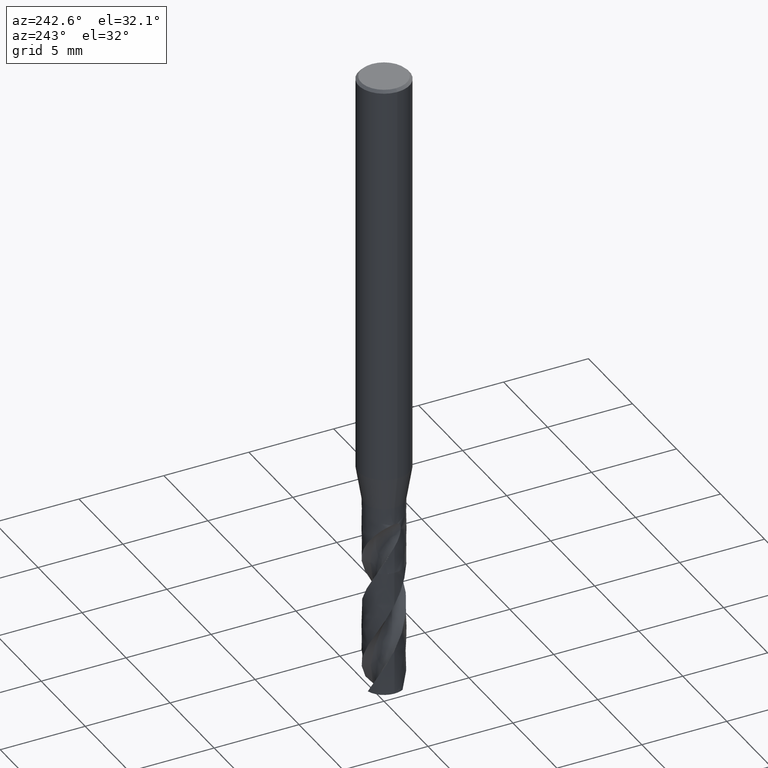
[diagram: clean part render]
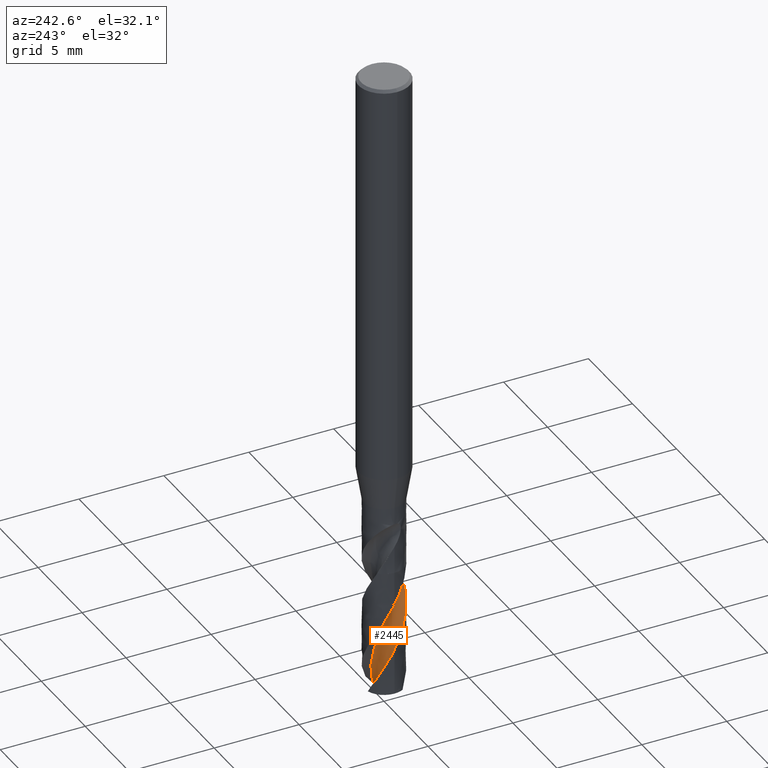
[diagram: same view with one face highlighted and labeled with its STEP entity id]
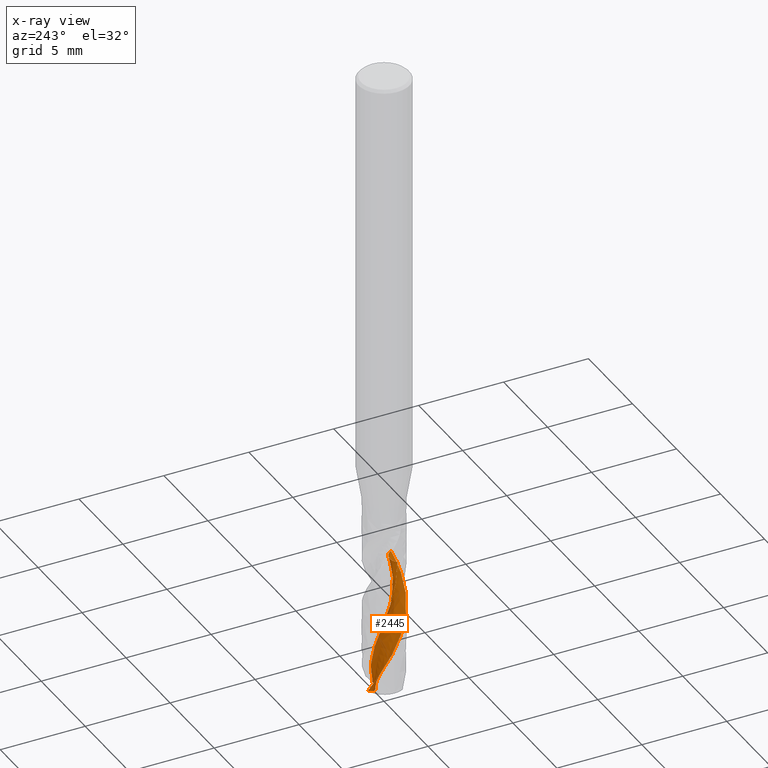
[diagram: x-ray of the same camera — body ghosted, the highlighted face saturated]
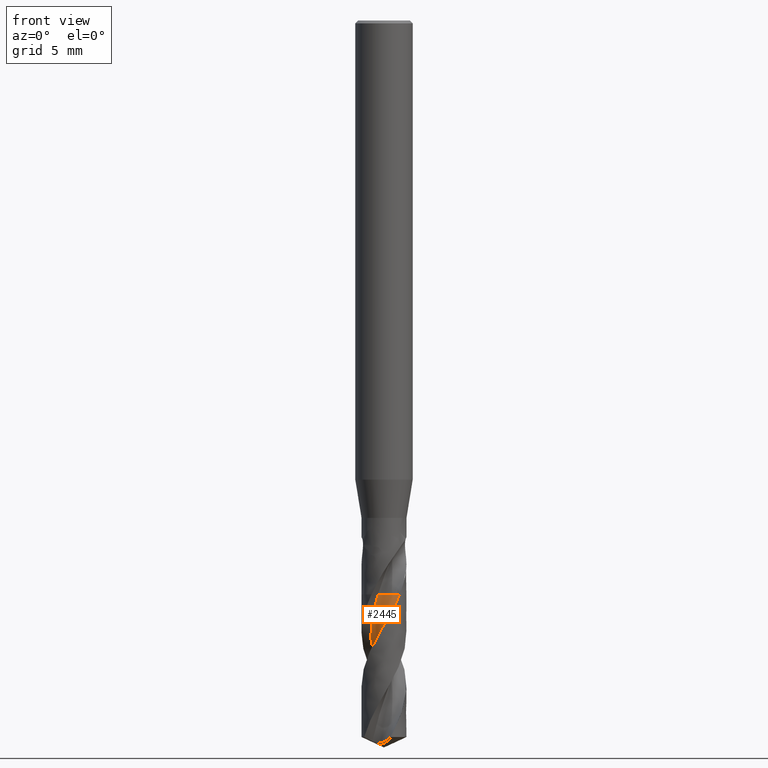
[diagram: same view with one face highlighted and labeled with its STEP entity id]
A machine part, auxiliary view. The second image highlights one B-rep face of the part: STEP entity #2445.
The next image is the same camera in x-ray: the body ghosted, the highlighted face saturated — about 0% of this face is hidden behind the body in this view.
A second angle (front view) of the same face is appended — the face is thin or edge-on in the first view.
In plain terms, the highlighted face is a freeform B-spline surface patch.
Its self-contained STEP definition (entity closure, byte-faithful):
#1412 = VERTEX_POINT('', #1413);
#1413 = CARTESIAN_POINT('', (-0.310056572990397, -0.636736640835384, -30.));
#1419 = EDGE_CURVE('', #1412, #1420, #1422, .T.);
#1420 = VERTEX_POINT('', #1421);
#1421 = CARTESIAN_POINT('', (0.825852395738025, -0.83581865285106, -30.));
#1422 = B_SPLINE_CURVE_WITH_KNOTS('', 3, (#1423, #1424, #1425, #1426, #1427, #1428, #1429, #1430, #1431, #1432, #1433, #1434, #1435, #1436, #1437, #1438, #1439, #1440, #1441, #1442, #1443, #1444, #1445, #1446, #1447, #1448, #1449, #1450, #1451, #1452, #1453, #1454, #1455, #1456, #1457, #1458, #1459, #1460, #1461, #1462, #1463, #1464, #1465, #1466, #1467, #1468, #1469, #1470, #1471, #1472, #1473, #1474), .UNSPECIFIED., .F., .U., (4, 3, 3, 3, 3, 3, 3, 3, 3, 3, 3, 3, 3, 3, 3, 3, 3, 4), (0., 0.0882468825165132, 0.176314471128919, 0.264208472789839, 0.351933032638059, 0.439490879164629, 0.526883418855281, 0.614110787306943, 0.67226466872502, 0.689551866928474, 0.777780971141354, 0.86583141177824, 0.953708735528269, 1.04141694391449, 1.12895863312161, 1.21633508414374, 1.30354630990752, 1.3452432899909), .UNSPECIFIED.);
#1423 = CARTESIAN_POINT('', (-0.310056572990397, -0.636736640835385, -30.));
#1424 = CARTESIAN_POINT('', (-0.28903558581991, -0.616160022067454, -30.));
#1425 = CARTESIAN_POINT('', (-0.266690012954979, -0.596855577440722, -30.));
#1426 = CARTESIAN_POINT('', (-0.243278165660954, -0.579046463262194, -30.));
#1427 = CARTESIAN_POINT('', (-0.219913884936807, -0.561273532408434, -30.));
#1428 = CARTESIAN_POINT('', (-0.195397921353725, -0.544921564279987, -30.));
#1429 = CARTESIAN_POINT('', (-0.170012528439635, -0.530178819912447, -30.));
#1430 = CARTESIAN_POINT('', (-0.144677171787895, -0.515465134453997, -30.));
#1431 = CARTESIAN_POINT('', (-0.118378882748517, -0.502298012300725, -30.));
#1432 = CARTESIAN_POINT('', (-0.0914192458724669, -0.490828451892731, -30.));
#1433 = CARTESIAN_POINT('', (-0.0645115817096365, -0.47938100247149, -30.));
#1434 = CARTESIAN_POINT('', (-0.0368425681992175, -0.469580919080158, -30.));
#1435 = CARTESIAN_POINT('', (-0.00872829041286684, -0.461540155838808, -30.));
#1436 = CARTESIAN_POINT('', (0.019332558497424, -0.453514673407654, -30.));
#1437 = CARTESIAN_POINT('', (0.0479435221148785, -0.447211332305335, -30.));
#1438 = CARTESIAN_POINT('', (0.0767789923027634, -0.442701867939966, -30.));
#1439 = CARTESIAN_POINT('', (0.105560021906188, -0.438200917320828, -30.));
#1440 = CARTESIAN_POINT('', (0.134673578372927, -0.435470024841199, -30.));
#1441 = CARTESIAN_POINT('', (0.163789580144319, -0.434540152614798, -30.));
#1442 = CARTESIAN_POINT('', (0.192850552892593, -0.433612037839871, -30.));
#1443 = CARTESIAN_POINT('', (0.22202347720164, -0.434474618714375, -30.));
#1444 = CARTESIAN_POINT('', (0.250978843957687, -0.437118152359728, -30.));
#1445 = CARTESIAN_POINT('', (0.270283186099813, -0.438880577901911, -30.));
#1446 = CARTESIAN_POINT('', (0.289531385557668, -0.441436628610267, -30.));
#1447 = CARTESIAN_POINT('', (0.308626656690257, -0.444773451905688, -30.));
#1448 = CARTESIAN_POINT('', (0.314303040256895, -0.44576537753939, -30.));
#1449 = CARTESIAN_POINT('', (0.319967763414958, -0.446826512823726, -30.));
#1450 = CARTESIAN_POINT('', (0.325618306230098, -0.447956385715989, -30.));
#1451 = CARTESIAN_POINT('', (0.35445712238925, -0.453722946149062, -30.));
#1452 = CARTESIAN_POINT('', (0.382991687563418, -0.461299936542827, -30.));
#1453 = CARTESIAN_POINT('', (0.410892279230117, -0.470599803280464, -30.));
#1454 = CARTESIAN_POINT('', (0.438736372312545, -0.479880837825907, -30.));
#1455 = CARTESIAN_POINT('', (0.466055987370024, -0.490913390327677, -30.));
#1456 = CARTESIAN_POINT('', (0.492536714416902, -0.503570491768583, -30.));
#1457 = CARTESIAN_POINT('', (0.518965377430995, -0.516202707950742, -30.));
#1458 = CARTESIAN_POINT('', (0.544659545460521, -0.530501382855048, -30.));
#1459 = CARTESIAN_POINT('', (0.569324673408629, -0.546302603620822, -30.));
#1460 = CARTESIAN_POINT('', (0.593942334593886, -0.562073415754603, -30.));
#1461 = CARTESIAN_POINT('', (0.617628722899381, -0.579401062219551, -30.));
#1462 = CARTESIAN_POINT('', (0.640113350513525, -0.598087669151907, -30.));
#1463 = CARTESIAN_POINT('', (0.662555289743066, -0.616738798464737, -30.));
#1464 = CARTESIAN_POINT('', (0.68388522555024, -0.636814506040216, -30.));
#1465 = CARTESIAN_POINT('', (0.70386050113291, -0.65808640361478, -30.));
#1466 = CARTESIAN_POINT('', (0.723798072642104, -0.679318149693772, -30.));
#1467 = CARTESIAN_POINT('', (0.742461502803415, -0.70182184140346, -30.));
#1468 = CARTESIAN_POINT('', (0.759639268420818, -0.725342431694534, -30.));
#1469 = CARTESIAN_POINT('', (0.776784551593251, -0.748818545521275, -30.));
#1470 = CARTESIAN_POINT('', (0.792514392460093, -0.773396137787874, -30.));
#1471 = CARTESIAN_POINT('', (0.806651187534198, -0.798797706253261, -30.));
#1472 = CARTESIAN_POINT('', (0.813410198859693, -0.810942572755385, -30.));
#1473 = CARTESIAN_POINT('', (0.819818329384635, -0.823297787877127, -30.));
#1474 = CARTESIAN_POINT('', (0.825852395738025, -0.83581865285106, -30.));
#2331 = EDGE_CURVE('', #1420, #2332, #2334, .T.);
#2332 = VERTEX_POINT('', #2333);
#2333 = CARTESIAN_POINT('', (0.266972097908336, -1.14426871797599, -31.1212727796582));
#2334 = B_SPLINE_CURVE_WITH_KNOTS('', 3, (#2335, #2336, #2337, #2338, #2339, #2340, #2341, #2342, #2343, #2344, #2345, #2346, #2347, #2348, #2349, #2350, #2351, #2352, #2353, #2354, #2355, #2356), .UNSPECIFIED., .F., .U., (4, 3, 3, 3, 3, 3, 3, 4), (0.81353262380367, 0.875933690164871, 1.07293763319324, 1.26990593108701, 1.46682811431797, 1.66370732220614, 1.95877341215135, 2.10770555532022), .UNSPECIFIED.);
#2335 = CARTESIAN_POINT('', (0.825852395738025, -0.83581865285106, -30.));
#2336 = CARTESIAN_POINT('', (0.818445904757134, -0.843136829227857, -30.0180067479815));
#2337 = CARTESIAN_POINT('', (0.810942125325879, -0.850356474669242, -30.0360158168574));
#2338 = CARTESIAN_POINT('', (0.803348929654479, -0.857470406033351, -30.0540266510148));
#2339 = CARTESIAN_POINT('', (0.779376751378024, -0.87992951788651, -30.1108879444692));
#2340 = CARTESIAN_POINT('', (0.754494805929052, -0.901353562566952, -30.1677910714515));
#2341 = CARTESIAN_POINT('', (0.728767968576534, -0.921695311899127, -30.2246824311101));
#2342 = CARTESIAN_POINT('', (0.703045786138867, -0.942033380673534, -30.2815634970652));
#2343 = CARTESIAN_POINT('', (0.676456550652546, -0.961305208071376, -30.3384502827728));
#2344 = CARTESIAN_POINT('', (0.649111758976148, -0.97942785561719, -30.3953234345152));
#2345 = CARTESIAN_POINT('', (0.621773369324144, -0.997546260247825, -30.452183270987));
#2346 = CARTESIAN_POINT('', (0.59367261008476, -1.01452090914273, -30.5090575529595));
#2347 = CARTESIAN_POINT('', (0.564925686131962, -1.03028344116963, -30.5659246092053));
#2348 = CARTESIAN_POINT('', (0.536185035768512, -1.04604253325793, -30.6227792550605));
#2349 = CARTESIAN_POINT('', (0.506783585366919, -1.06059854218703, -30.6796498401915));
#2350 = CARTESIAN_POINT('', (0.476833319899476, -1.07389710169719, -30.7365089171754));
#2351 = CARTESIAN_POINT('', (0.431946367035874, -1.09382787040892, -30.8217245461059));
#2352 = CARTESIAN_POINT('', (0.385791985282001, -1.11094548255398, -30.9069859250054));
#2353 = CARTESIAN_POINT('', (0.338781901869354, -1.12510080569039, -30.9922118387715));
#2354 = CARTESIAN_POINT('', (0.315053955108365, -1.13224558675401, -31.0352289065514));
#2355 = CARTESIAN_POINT('', (0.291099473520367, -1.13863950170627, -31.0782528639844));
#2356 = CARTESIAN_POINT('', (0.266972097908325, -1.14426871797599, -31.1212727796582));
#2445 = ADVANCED_FACE('', (#2446), #2631, .T.);
#2446 = FACE_OUTER_BOUND('', #2447, .T.);
#2447 = EDGE_LOOP('', (#2448, #2449, #2494, #2587, #2596, #2630));
#2448 = ORIENTED_EDGE('', *, *, #1419, .F.);
#2449 = ORIENTED_EDGE('', *, *, #2450, .F.);
#2450 = EDGE_CURVE('', #2451, #1412, #2453, .T.);
#2451 = VERTEX_POINT('', #2452);
#2452 = CARTESIAN_POINT('', (0.607430328762443, 0.353179345189753, -37.672352165348));
#2453 = (
   BOUNDED_CURVE ()
   B_SPLINE_CURVE (3, (#2454, #2455, #2456, #2457, #2458, #2459, #2460, #2461, #2462, #2463, #2464, #2465, #2466, #2467, #2468, #2469, #2470, #2471, #2472, #2473, #2474, #2475, #2476, #2477, #2478, #2479, #2480, #2481, #2482, #2483, #2484, #2485, #2486, #2487, #2488, #2489, #2490, #2491, #2492, #2493), .UNSPECIFIED., .F., .U.)
   B_SPLINE_CURVE_WITH_KNOTS ((4, 1, 1, 1, 1, 1, 1, 1, 1, 1, 1, 1, 1, 1, 1, 1, 1, 1, 1, 1, 1, 1, 1, 1, 1, 1, 1, 1, 1, 1, 1, 1, 1, 1, 1, 1, 1, 4), (0.377647834651986, 0.433333333333333, 0.65, 0.866666666666667, 1.08333333333333, 1.3, 1.51666666666667, 1.73333333333333, 1.95, 2.16666666666667, 2.38333333333333, 2.6, 2.81666666666667, 3.03333333333333, 3.25, 3.46666666666667, 3.68333333333333, 3.9, 4.11666666666667, 4.33333333333333, 4.55, 4.76666666666667, 4.98333333333333, 5.2, 5.41666666666667, 5.63333333333333, 5.85, 6.06666666666667, 6.28333333333333, 6.5, 6.71666666666667, 6.93333333333333, 7.15, 7.36666666666667, 7.58333333333333, 7.8, 8.01666666666667, 8.05), .UNSPECIFIED.)
   CURVE ()
   GEOMETRIC_REPRESENTATION_ITEM ()
   RATIONAL_B_SPLINE_CURVE ((1., 1., 1., 1., 1., 1., 1., 1., 1., 1., 1., 1., 1., 1., 1., 1., 1., 1., 1., 1., 1., 1., 1., 1., 1., 1., 1., 1., 1., 1., 1., 1., 1., 1., 1., 1., 1., 1., 1., 1.))
   REPRESENTATION_ITEM ('')
);
#2454 = CARTESIAN_POINT('', (0.607430328762443, 0.353179345189754, -37.672352165348));
#2455 = CARTESIAN_POINT('', (0.60411072402873, 0.358588863284804, -37.6537903324542));
#2456 = CARTESIAN_POINT('', (0.587526648131126, 0.384820677305307, -37.5630062773382));
#2457 = CARTESIAN_POINT('', (0.554741964565159, 0.429858032632321, -37.4));
#2458 = CARTESIAN_POINT('', (0.505303468884842, 0.484745935378136, -37.1833333333333));
#2459 = CARTESIAN_POINT('', (0.450555430302855, 0.534097242375124, -36.9666666666667));
#2460 = CARTESIAN_POINT('', (0.391103108120681, 0.577411427832879, -36.75));
#2461 = CARTESIAN_POINT('', (0.327597236224047, 0.614252295188245, -36.5333333333333));
#2462 = CARTESIAN_POINT('', (0.260727748676196, 0.64425229390715, -36.3166666666667));
#2463 = CARTESIAN_POINT('', (0.191216602371652, 0.667115804675747, -36.1));
#2464 = CARTESIAN_POINT('', (0.119810478915378, 0.682621811255435, -35.8833333333333));
#2465 = CARTESIAN_POINT('', (0.047273242750296, 0.690625819783552, -35.6666666666667));
#2466 = CARTESIAN_POINT('', (-0.0256217231825259, 0.691061043781038, -35.45));
#2467 = CARTESIAN_POINT('', (-0.0980992474036231, 0.683938839102296, -35.2333333333333));
#2468 = CARTESIAN_POINT('', (-0.169390091062562, 0.669348390362703, -35.0166666666667));
#2469 = CARTESIAN_POINT('', (-0.238738591014621, 0.647455653882285, -34.8));
#2470 = CARTESIAN_POINT('', (-0.30541015524102, 0.618501569284355, -34.5833333333333));
#2471 = CARTESIAN_POINT('', (-0.368698542902669, 0.582799557870803, -34.3666666666667));
#2472 = CARTESIAN_POINT('', (-0.427932863267565, 0.540732331972326, -34.15));
#2473 = CARTESIAN_POINT('', (-0.482484230318985, 0.492748045267429, -33.9333333333333));
#2474 = CARTESIAN_POINT('', (-0.531772012871576, 0.439355819630104, -33.7166666666667));
#2475 = CARTESIAN_POINT('', (-0.575269623511679, 0.381120689343455, -33.5));
#2476 = CARTESIAN_POINT('', (-0.612509793603903, 0.318658008472619, -33.2833333333333));
#2477 = CARTESIAN_POINT('', (-0.643089285939288, 0.252627371805398, -33.0666666666667));
#2478 = CARTESIAN_POINT('', (-0.666673001331353, 0.183726103956553, -32.85));
#2479 = CARTESIAN_POINT('', (-0.68299744049406, 0.112682375168384, -32.6333333333333));
#2480 = CARTESIAN_POINT('', (-0.691873488091487, 0.0402480052289624, -32.4166666666667));
#2481 = CARTESIAN_POINT('', (-0.693188490913276, -0.032808978384908, -32.2));
#2482 = CARTESIAN_POINT('', (-0.686907610343959, -0.105711966286407, -31.9833333333333));
#2483 = CARTESIAN_POINT('', (-0.673074426893331, -0.177683488260426, -31.7666666666667));
#2484 = CARTESIAN_POINT('', (-0.651810812727918, -0.247953032468109, -31.55));
#2485 = CARTESIAN_POINT('', (-0.623315975658091, -0.31576461841908, -31.3333333333333));
#2486 = CARTESIAN_POINT('', (-0.58786502838043, -0.380385071711235, -31.1166666666667));
#2487 = CARTESIAN_POINT('', (-0.545805786964525, -0.441109124747139, -30.9));
#2488 = CARTESIAN_POINT('', (-0.497558690790905, -0.497275472323132, -30.6833333333333));
#2489 = CARTESIAN_POINT('', (-0.443601672364508, -0.548240721375793, -30.4666666666667));
#2490 = CARTESIAN_POINT('', (-0.384507911284166, -0.593508936766856, -30.25));
#2491 = CARTESIAN_POINT('', (-0.33875675418427, -0.621343593016662, -30.0944444444444));
#2492 = CARTESIAN_POINT('', (-0.313446101236809, -0.634948817954132, -30.0111111111111));
#2493 = CARTESIAN_POINT('', (-0.310056572990397, -0.636736640835384, -30.));
#2494 = ORIENTED_EDGE('', *, *, #2495, .T.);
#2495 = EDGE_CURVE('', #2451, #2496, #2498, .T.);
#2496 = VERTEX_POINT('', #2497);
#2497 = CARTESIAN_POINT('', (-0.338161658511056, 1.12528738227755, -37.4520885016679));
#2498 = B_SPLINE_CURVE_WITH_KNOTS('', 3, (#2499, #2500, #2501, #2502, #2503, #2504, #2505, #2506, #2507, #2508, #2509, #2510, #2511, #2512, #2513, #2514, #2515, #2516, #2517, #2518, #2519, #2520, #2521, #2522, #2523, #2524, #2525, #2526, #2527, #2528, #2529, #2530, #2531, #2532, #2533, #2534, #2535, #2536, #2537, #2538, #2539, #2540, #2541, #2542, #2543, #2544, #2545, #2546, #2547, #2548, #2549, #2550, #2551, #2552, #2553, #2554, #2555, #2556, #2557, #2558, #2559, #2560, #2561, #2562, #2563, #2564, #2565, #2566, #2567, #2568, #2569, #2570, #2571, #2572, #2573, #2574, #2575, #2576, #2577, #2578, #2579, #2580, #2581, #2582, #2583, #2584, #2585, #2586), .UNSPECIFIED., .F., .U., (4, 3, 3, 3, 3, 3, 3, 3, 3, 3, 3, 3, 3, 3, 3, 3, 3, 3, 3, 3, 3, 3, 3, 3, 3, 3, 3, 3, 3, 4), (0., 0.0584546465119153, 0.116835007347035, 0.175096926865649, 0.213891152012831, 0.252631456754015, 0.29132079033709, 0.329972627099937, 0.368611581580512, 0.407268859800267, 0.445972794582668, 0.484739251594646, 0.523567927680223, 0.562445978273234, 0.601355092813855, 0.640277471821008, 0.679198887452651, 0.696501007882805, 0.713867130443627, 0.772993960590003, 0.83189534949514, 0.890619793826721, 0.949204523059645, 1.00767693951231, 1.06605681218293, 1.12435825064104, 1.21158228466745, 1.29860676316296, 1.38544995620957, 1.43816429327208), .UNSPECIFIED.);
#2499 = CARTESIAN_POINT('', (0.607430328762443, 0.353179345189754, -37.672352165348));
#2500 = CARTESIAN_POINT('', (0.59066809518801, 0.347433528051295, -37.6804560992206));
#2501 = CARTESIAN_POINT('', (0.573525409946063, 0.342603041465193, -37.6884887504397));
#2502 = CARTESIAN_POINT('', (0.556115339284522, 0.33876753889185, -37.6963525276983));
#2503 = CARTESIAN_POINT('', (0.538727393791112, 0.334936910574388, -37.7042063114654));
#2504 = CARTESIAN_POINT('', (0.521022888558366, 0.332088359040214, -37.7119145464595));
#2505 = CARTESIAN_POINT('', (0.503129567620144, 0.330289005566165, -37.7193501146373));
#2506 = CARTESIAN_POINT('', (0.485272548418641, 0.328493302597034, -37.726770597631));
#2507 = CARTESIAN_POINT('', (0.467170419255718, 0.327737771160543, -37.7339433384493));
#2508 = CARTESIAN_POINT('', (0.448968122143674, 0.328068274460339, -37.7407056161123));
#2509 = CARTESIAN_POINT('', (0.436847958266565, 0.328288343066559, -37.7452083397494));
#2510 = CARTESIAN_POINT('', (0.424660039769848, 0.328989557113384, -37.7495371866311));
#2511 = CARTESIAN_POINT('', (0.412452701863025, 0.330177034046347, -37.7536350058699));
#2512 = CARTESIAN_POINT('', (0.400262331033482, 0.331362860495557, -37.7577271295169));
#2513 = CARTESIAN_POINT('', (0.388031503723794, 0.333035896669825, -37.7615956912216));
#2514 = CARTESIAN_POINT('', (0.375813698646336, 0.335191218577815, -37.7651785152242));
#2515 = CARTESIAN_POINT('', (0.363611968705058, 0.337343704698774, -37.7687566252553));
#2516 = CARTESIAN_POINT('', (0.351400408352993, 0.339981490000975, -37.7720559872245));
#2517 = CARTESIAN_POINT('', (0.339237847946343, 0.343086256840967, -37.7750141671852));
#2518 = CARTESIAN_POINT('', (0.327087075216007, 0.346188014611708, -37.7779694801453));
#2519 = CARTESIAN_POINT('', (0.314961002907329, 0.349762210503344, -37.7805895444841));
#2520 = CARTESIAN_POINT('', (0.302922516299086, 0.353774444689435, -37.7828195379648));
#2521 = CARTESIAN_POINT('', (0.290888042001657, 0.357785341636789, -37.7850487882103));
#2522 = CARTESIAN_POINT('', (0.278916259391664, 0.362242256775862, -37.7868922286791));
#2523 = CARTESIAN_POINT('', (0.267070404310234, 0.367094545461683, -37.7883122408248));
#2524 = CARTESIAN_POINT('', (0.255218931572689, 0.371949135246834, -37.7897329263823));
#2525 = CARTESIAN_POINT('', (0.243469183538682, 0.377209171005792, -37.7907323913492));
#2526 = CARTESIAN_POINT('', (0.231878907143677, 0.382811709089269, -37.7912979491226));
#2527 = CARTESIAN_POINT('', (0.220274642116218, 0.388421009034447, -37.7918641894836));
#2528 = CARTESIAN_POINT('', (0.208807735213166, 0.394384038026421, -37.7919967500237));
#2529 = CARTESIAN_POINT('', (0.19752457072222, 0.400633172185958, -37.7917097619137));
#2530 = CARTESIAN_POINT('', (0.186223179438452, 0.406892401179594, -37.7914223102039));
#2531 = CARTESIAN_POINT('', (0.175086581912548, 0.413448956098501, -37.7907140478318));
#2532 = CARTESIAN_POINT('', (0.1641466140287, 0.420238955405378, -37.7896208721176));
#2533 = CARTESIAN_POINT('', (0.153189087803972, 0.427039852470245, -37.7885259418872));
#2534 = CARTESIAN_POINT('', (0.1424128762478, 0.434084417754269, -37.7870440033739));
#2535 = CARTESIAN_POINT('', (0.131835881186902, 0.441318482508628, -37.7852235812598));
#2536 = CARTESIAN_POINT('', (0.121245436429185, 0.44856174609282, -37.7834008442987));
#2537 = CARTESIAN_POINT('', (0.110842385544212, 0.456003170290437, -37.7812372644923));
#2538 = CARTESIAN_POINT('', (0.100633981053455, 0.463600510320417, -37.7787849880463));
#2539 = CARTESIAN_POINT('', (0.0904174199463683, 0.471203920700353, -37.7763307522071));
#2540 = CARTESIAN_POINT('', (0.0803866343240794, 0.478970224600526, -37.7735855582536));
#2541 = CARTESIAN_POINT('', (0.0705422174603349, 0.486868362911886, -37.7705989026587));
#2542 = CARTESIAN_POINT('', (0.0606944445464835, 0.494769193769518, -37.7676112288861));
#2543 = CARTESIAN_POINT('', (0.051026443831091, 0.502807332651949, -37.764380092777));
#2544 = CARTESIAN_POINT('', (0.0415354889338769, 0.510960764515032, -37.7609491631409));
#2545 = CARTESIAN_POINT('', (0.0320447689491671, 0.519113994570909, -37.7575183184243));
#2546 = CARTESIAN_POINT('', (0.0227261449943112, 0.527386792013114, -37.7538859701808));
#2547 = CARTESIAN_POINT('', (0.0135758314297387, 0.535763823581565, -37.7500890338615));
#2548 = CARTESIAN_POINT('', (0.00950815237185793, 0.539487747973635, -37.7484011443438));
#2549 = CARTESIAN_POINT('', (0.00547318366495287, 0.543232836328786, -37.746680422218));
#2550 = CARTESIAN_POINT('', (0.00147059961810277, 0.546998055472178, -37.7449296959201));
#2551 = CARTESIAN_POINT('', (-0.00254679035431083, 0.55077720250658, -37.743172493525));
#2552 = CARTESIAN_POINT('', (-0.00653184296471015, 0.554576900653698, -37.7413849385067));
#2553 = CARTESIAN_POINT('', (-0.0104848626241149, 0.558396259300005, -37.7395696506897));
#2554 = CARTESIAN_POINT('', (-0.0239437980397958, 0.571400116042195, -37.7333890992139));
#2555 = CARTESIAN_POINT('', (-0.0370379228091957, 0.584636925851609, -37.7268861602908));
#2556 = CARTESIAN_POINT('', (-0.0497758685947914, 0.598081448615705, -37.7201458343307));
#2557 = CARTESIAN_POINT('', (-0.0624652466100257, 0.611474709543299, -37.7134312081662));
#2558 = CARTESIAN_POINT('', (-0.0748086970566829, 0.625082404118337, -37.7064765635763));
#2559 = CARTESIAN_POINT('', (-0.0868084247996351, 0.638888781839937, -37.6993437923392));
#2560 = CARTESIAN_POINT('', (-0.0987721043823023, 0.65265368407745, -37.6922324485283));
#2561 = CARTESIAN_POINT('', (-0.110400024515861, 0.666623115443545, -37.6849401563391));
#2562 = CARTESIAN_POINT('', (-0.121688131164806, 0.680785950075015, -37.6775127653406));
#2563 = CARTESIAN_POINT('', (-0.132949381553943, 0.694915088996625, -37.6701030453252));
#2564 = CARTESIAN_POINT('', (-0.143877448674257, 0.709243180849624, -37.6625552789119));
#2565 = CARTESIAN_POINT('', (-0.154462691458895, 0.723761045975879, -37.6549043636029));
#2566 = CARTESIAN_POINT('', (-0.165027641275341, 0.738251078903929, -37.647268115863));
#2567 = CARTESIAN_POINT('', (-0.175255606877737, 0.752936495057854, -37.6395256318448));
#2568 = CARTESIAN_POINT('', (-0.185132004083893, 0.767808498997122, -37.6317043931015));
#2569 = CARTESIAN_POINT('', (-0.194992770002582, 0.782656965145844, -37.6238955329643));
#2570 = CARTESIAN_POINT('', (-0.204507333862353, 0.797697933175622, -37.6160046463641));
#2571 = CARTESIAN_POINT('', (-0.213656643352028, 0.812921971689791, -37.6080542542167));
#2572 = CARTESIAN_POINT('', (-0.222793660610632, 0.828125556485628, -37.6001145435375));
#2573 = CARTESIAN_POINT('', (-0.231570503003455, 0.843518623057805, -37.5921118138023));
#2574 = CARTESIAN_POINT('', (-0.239963957161495, 0.859090317203958, -37.5840653643112));
#2575 = CARTESIAN_POINT('', (-0.252521296233085, 0.882386929019609, -37.5720271744694));
#2576 = CARTESIAN_POINT('', (-0.264232541686514, 0.906105407659752, -37.5598802619718));
#2577 = CARTESIAN_POINT('', (-0.27500289462015, 0.930199779924212, -37.5476819988093));
#2578 = CARTESIAN_POINT('', (-0.285748606598782, 0.954239027872276, -37.5355116434466));
#2579 = CARTESIAN_POINT('', (-0.295570722022912, 0.978682223864046, -37.5232749373234));
#2580 = CARTESIAN_POINT('', (-0.30435517082137, 1.00346683736818, -37.5110262757537));
#2581 = CARTESIAN_POINT('', (-0.313121320254279, 1.02819982068891, -37.4988031300406));
#2582 = CARTESIAN_POINT('', (-0.320866382837751, 1.05330851227163, -37.4865503946973));
#2583 = CARTESIAN_POINT('', (-0.327457730827811, 1.07870660401954, -37.4743249213655));
#2584 = CARTESIAN_POINT('', (-0.331458718440713, 1.09412339746269, -37.4669039860066));
#2585 = CARTESIAN_POINT('', (-0.335037645386714, 1.10965870107813, -37.4594871886808));
#2586 = CARTESIAN_POINT('', (-0.338161658511056, 1.12528738227755, -37.4520885016679));
#2587 = ORIENTED_EDGE('', *, *, #2588, .F.);
#2588 = EDGE_CURVE('', #2589, #2496, #2591, .T.);
#2589 = VERTEX_POINT('', #2590);
#2590 = CARTESIAN_POINT('', (-0.484981410679118, 1.07024204332277, -37.1754388657541));
#2591 = B_SPLINE_CURVE_WITH_KNOTS('', 3, (#2592, #2593, #2594, #2595), .UNSPECIFIED., .F., .U., (4, 4), (0., 0.317995361630527), .UNSPECIFIED.);
#2592 = CARTESIAN_POINT('', (-0.484981410679114, 1.07024204332277, -37.1754388657542));
#2593 = CARTESIAN_POINT('', (-0.437337918856375, 1.09183174634185, -37.2676324373021));
#2594 = CARTESIAN_POINT('', (-0.388234499792308, 1.11023992389429, -37.3598824455408));
#2595 = CARTESIAN_POINT('', (-0.338161658511056, 1.12528738227755, -37.4520885016679));
#2596 = ORIENTED_EDGE('', *, *, #2597, .T.);
#2597 = EDGE_CURVE('', #2589, #2332, #2598, .T.);
#2598 = B_SPLINE_CURVE_WITH_KNOTS('', 3, (#2599, #2600, #2601, #2602, #2603, #2604, #2605, #2606, #2607, #2608, #2609, #2610, #2611, #2612, #2613, #2614, #2615, #2616, #2617, #2618, #2619, #2620, #2621, #2622, #2623, #2624, #2625, #2626, #2627, #2628, #2629), .UNSPECIFIED., .F., .U., (4, 1, 1, 1, 1, 1, 1, 1, 1, 1, 1, 1, 1, 1, 1, 1, 1, 1, 1, 1, 1, 1, 1, 1, 1, 1, 1, 1, 4), (0.874561134245855, 1.08333333333333, 1.3, 1.51666666666667, 1.73333333333333, 1.95, 2.16666666666667, 2.38333333333333, 2.6, 2.81666666666667, 3.03333333333333, 3.25, 3.46666666666667, 3.68333333333333, 3.9, 4.11666666666667, 4.33333333333333, 4.55, 4.76666666666667, 4.98333333333333, 5.2, 5.41666666666667, 5.63333333333333, 5.85, 6.06666666666667, 6.28333333333333, 6.5, 6.71666666666667, 6.92872722034178), .UNSPECIFIED.);
#2599 = CARTESIAN_POINT('', (-0.484981410679121, 1.07024204332277, -37.1754388657541));
#2600 = CARTESIAN_POINT('', (-0.520877913792561, 1.0530784907727, -37.105848132725));
#2601 = CARTESIAN_POINT('', (-0.592197414498744, 1.0144721633206, -36.9640351774736));
#2602 = CARTESIAN_POINT('', (-0.693146869925114, 0.94567048553227, -36.75));
#2603 = CARTESIAN_POINT('', (-0.787379480947867, 0.865945283975834, -36.5333333333333));
#2604 = CARTESIAN_POINT('', (-0.872682119439246, 0.777027075566999, -36.3166666666667));
#2605 = CARTESIAN_POINT('', (-0.948178585401377, 0.679891851110478, -36.1));
#2606 = CARTESIAN_POINT('', (-1.01309682419074, 0.575596923338466, -35.8833333333333));
#2607 = CARTESIAN_POINT('', (-1.06677622896, 0.465270070514866, -35.6666666666667));
#2608 = CARTESIAN_POINT('', (-1.10867384969145, 0.350098071025461, -35.45));
#2609 = CARTESIAN_POINT('', (-1.13836945172442, 0.231314710051105, -35.2333333333333));
#2610 = CARTESIAN_POINT('', (-1.15556938414156, 0.110188377012419, -35.0166666666667));
#2611 = CARTESIAN_POINT('', (-1.1601092268163, -0.0119906336422282, -34.8));
#2612 = CARTESIAN_POINT('', (-1.15195519601505, -0.133923001296549, -34.5833333333333));
#2613 = CARTESIAN_POINT('', (-1.13120429896963, -0.254313320221062, -34.3666666666667));
#2614 = CARTESIAN_POINT('', (-1.09808323855937, -0.371882985022397, -34.15));
#2615 = CARTESIAN_POINT('', (-1.05294607986958, -0.485382903475035, -33.9333333333333));
#2616 = CARTESIAN_POINT('', (-0.996270700913668, -0.593605921358372, -33.7166666666667));
#2617 = CARTESIAN_POINT('', (-0.928654060134402, -0.695398846463382, -33.5));
#2618 = CARTESIAN_POINT('', (-0.85080632336624, -0.789673962347026, -33.2833333333333));
#2619 = CARTESIAN_POINT('', (-0.763543902697642, -0.875419926664821, -33.0666666666667));
#2620 = CARTESIAN_POINT('', (-0.667781468977143, -0.951711954035436, -32.85));
#2621 = CARTESIAN_POINT('', (-0.564523008782129, -1.01772118912638, -32.6333333333333));
#2622 = CARTESIAN_POINT('', (-0.454852004384146, -1.0727231828135, -32.4166666666667));
#2623 = CARTESIAN_POINT('', (-0.339920825526332, -1.11610538963657, -32.2));
#2624 = CARTESIAN_POINT('', (-0.220939419737539, -1.14737362018366, -31.9833333333333));
#2625 = CARTESIAN_POINT('', (-0.0991634289286716, -1.16615736310445, -31.7666666666667));
#2626 = CARTESIAN_POINT('', (0.0241182631823249, -1.17221400358539, -31.55));
#2627 = CARTESIAN_POINT('', (0.146721058016876, -1.16547965315282, -31.3348687043305));
#2628 = CARTESIAN_POINT('', (0.227433521145325, -1.15264152036565, -31.1919596308833));
#2629 = CARTESIAN_POINT('', (0.266972097908335, -1.14426871797599, -31.1212727796582));
#2630 = ORIENTED_EDGE('', *, *, #2331, .F.);
#2631 = (
   BOUNDED_SURFACE ()
   B_SPLINE_SURFACE (3, 2, ((#2632, #2633, #2634, #2635, #2636), (#2637, #2638, #2639, #2640, #2641), (#2642, #2643, #2644, #2645, #2646), (#2647, #2648, #2649, #2650, #2651), (#2652, #2653, #2654, #2655, #2656), (#2657, #2658, #2659, #2660, #2661), (#2662, #2663, #2664, #2665, #2666), (#2667, #2668, #2669, #2670, #2671), (#2672, #2673, #2674, #2675, #2676), (#2677, #2678, #2679, #2680, #2681), (#2682, #2683, #2684, #2685, #2686), (#2687, #2688, #2689, #2690, #2691), (#2692, #2693, #2694, #2695, #2696), (#2697, #2698, #2699, #2700, #2701), (#2702, #2703, #2704, #2705, #2706), (#2707, #2708, #2709, #2710, #2711), (#2712, #2713, #2714, #2715, #2716), (#2717, #2718, #2719, #2720, #2721), (#2722, #2723, #2724, #2725, #2726), (#2727, #2728, #2729, #2730, #2731), (#2732, #2733, #2734, #2735, #2736), (#2737, #2738, #2739, #2740, #2741), (#2742, #2743, #2744, #2745, #2746), (#2747, #2748, #2749, #2750, #2751), (#2752, #2753, #2754, #2755, #2756), (#2757, #2758, #2759, #2760, #2761), (#2762, #2763, #2764, #2765, #2766), (#2767, #2768, #2769, #2770, #2771), (#2772, #2773, #2774, #2775, #2776), (#2777, #2778, #2779, #2780, #2781), (#2782, #2783, #2784, #2785, #2786), (#2787, #2788, #2789, #2790, #2791), (#2792, #2793, #2794, #2795, #2796), (#2797, #2798, #2799, #2800, #2801), (#2802, #2803, #2804, #2805, #2806), (#2807, #2808, #2809, #2810, #2811), (#2812, #2813, #2814, #2815, #2816), (#2817, #2818, #2819, #2820, #2821), (#2822, #2823, #2824, #2825, #2826), (#2827, #2828, #2829, #2830, #2831)), .UNSPECIFIED., .F., .F., .U.)
   B_SPLINE_SURFACE_WITH_KNOTS ((4, 1, 1, 1, 1, 1, 1, 1, 1, 1, 1, 1, 1, 1, 1, 1, 1, 1, 1, 1, 1, 1, 1, 1, 1, 1, 1, 1, 1, 1, 1, 1, 1, 1, 1, 1, 1, 4), (3, 2, 3), (0.25800324997631, 0.433333333333333, 0.65, 0.866666666666667, 1.08333333333333, 1.3, 1.51666666666667, 1.73333333333333, 1.95, 2.16666666666667, 2.38333333333333, 2.6, 2.81666666666667, 3.03333333333333, 3.25, 3.46666666666667, 3.68333333333333, 3.9, 4.11666666666667, 4.33333333333333, 4.55, 4.76666666666667, 4.98333333333333, 5.2, 5.41666666666667, 5.63333333333333, 5.85, 6.06666666666667, 6.28333333333333, 6.5, 6.71666666666667, 6.93333333333333, 7.15, 7.36666666666667, 7.58333333333333, 7.8, 8.01666666666667, 8.05000000000261), (0., 0.5, 1.), .UNSPECIFIED.)
   GEOMETRIC_REPRESENTATION_ITEM ()
   RATIONAL_B_SPLINE_SURFACE (((1., 0.887010833178222, 1., 0.887010833178222, 1.), (1., 0.887010833178222, 1., 0.887010833178222, 1.), (1., 0.887010833178222, 1., 0.887010833178222, 1.), (1., 0.887010833178222, 1., 0.887010833178222, 1.), (1., 0.887010833178222, 1., 0.887010833178222, 1.), (1., 0.887010833178222, 1., 0.887010833178222, 1.), (1., 0.887010833178222, 1., 0.887010833178222, 1.), (1., 0.887010833178222, 1., 0.887010833178222, 1.), (1., 0.887010833178222, 1., 0.887010833178222, 1.), (1., 0.887010833178222, 1., 0.887010833178222, 1.), (1., 0.887010833178222, 1., 0.887010833178222, 1.), (1., 0.887010833178222, 1., 0.887010833178222, 1.), (1., 0.887010833178222, 1., 0.887010833178222, 1.), (1., 0.887010833178222, 1., 0.887010833178222, 1.), (1., 0.887010833178222, 1., 0.887010833178222, 1.), (1., 0.887010833178222, 1., 0.887010833178222, 1.), (1., 0.887010833178222, 1., 0.887010833178222, 1.), (1., 0.887010833178222, 1., 0.887010833178222, 1.), (1., 0.887010833178222, 1., 0.887010833178222, 1.), (1., 0.887010833178221, 1., 0.887010833178221, 1.), (1., 0.887010833178222, 1., 0.887010833178222, 1.), (1., 0.887010833178222, 1., 0.887010833178222, 1.), (1., 0.887010833178222, 1., 0.887010833178222, 1.), (1., 0.887010833178222, 1., 0.887010833178222, 1.), (1., 0.887010833178222, 1., 0.887010833178222, 1.), (1., 0.887010833178222, 1., 0.887010833178222, 1.), (1., 0.887010833178222, 1., 0.887010833178222, 1.), (1., 0.887010833178222, 1., 0.887010833178222, 1.), (1., 0.887010833178222, 1., 0.887010833178222, 1.), (1., 0.887010833178222, 1., 0.887010833178222, 1.), (1., 0.887010833178222, 1., 0.887010833178222, 1.), (1., 0.887010833178222, 1., 0.887010833178222, 1.), (1., 0.887010833178222, 1., 0.887010833178222, 1.), (1., 0.887010833178222, 1., 0.887010833178222, 1.), (1., 0.887010833178222, 1., 0.887010833178222, 1.), (1., 0.887010833178222, 1., 0.887010833178222, 1.), (1., 0.887010833178222, 1., 0.887010833178222, 1.), (1., 0.887010833178222, 1., 0.887010833178222, 1.), (1., 0.887010833178222, 1., 0.887010833178222, 1.), (1., 0.887010833178222, 1., 0.887010833178222, 1.)))
   REPRESENTATION_ITEM ('')
   SURFACE ()
);
#2632 = CARTESIAN_POINT('', (-0.148094635579324, 1.1736677299253, -37.7919967500237));
#2633 = CARTESIAN_POINT('', (-0.229477072731807, 0.815703501542219, -37.7919967500237));
#2634 = CARTESIAN_POINT('', (0.0170710084470397, 0.543719065322424, -37.7919967500237));
#2635 = CARTESIAN_POINT('', (0.263619089625886, 0.27173462910263, -37.7919967500237));
#2636 = CARTESIAN_POINT('', (0.627829866361871, 0.317691130145911, -37.7919967500237));
#2637 = CARTESIAN_POINT('', (-0.181361375400528, 1.16863668365584, -37.7335533889047));
#2638 = CARTESIAN_POINT('', (-0.252509127931745, 0.808608757350034, -37.7335533889047));
#2639 = CARTESIAN_POINT('', (0.0015998095515382, 0.54382439546018, -37.7335533889047));
#2640 = CARTESIAN_POINT('', (0.255708747034821, 0.279040033570327, -37.7335533889047));
#2641 = CARTESIAN_POINT('', (0.618358297179263, 0.335319818487594, -37.7335533889047));
#2642 = CARTESIAN_POINT('', (-0.255186655908731, 1.15427413955319, -37.6028878055635));
#2643 = CARTESIAN_POINT('', (-0.30328229190506, 0.790598929674425, -37.6028878055635));
#2644 = CARTESIAN_POINT('', (-0.0329635237744574, 0.542605760255176, -37.6028878055635));
#2645 = CARTESIAN_POINT('', (0.237355244356145, 0.294612590835925, -37.6028878055635));
#2646 = CARTESIAN_POINT('', (0.595547831758786, 0.373801724004895, -37.6028878055635));
#2647 = CARTESIAN_POINT('', (-0.367011361707752, 1.12135367485608, -37.4));
#2648 = CARTESIAN_POINT('', (-0.379004449553458, 0.755409669480583, -37.4));
#2649 = CARTESIAN_POINT('', (-0.0861196220422006, 0.535688648547127, -37.4));
#2650 = CARTESIAN_POINT('', (0.206765205469057, 0.315967627613671, -37.4));
#2651 = CARTESIAN_POINT('', (0.554741964565159, 0.429858032632321, -37.4));
#2652 = CARTESIAN_POINT('', (-0.481866216997388, 1.07410424669, -37.1833333333333));
#2653 = CARTESIAN_POINT('', (-0.455352346096466, 0.709748223144773, -37.1833333333333));
#2654 = CARTESIAN_POINT('', (-0.141681632975161, 0.522481085147166, -37.1833333333333));
#2655 = CARTESIAN_POINT('', (0.171989080146144, 0.335213947149559, -37.1833333333333));
#2656 = CARTESIAN_POINT('', (0.505303468884842, 0.484745935378136, -37.1833333333333));
#2657 = CARTESIAN_POINT('', (-0.590956275522732, 1.01531805638221, -36.9666666666667));
#2658 = CARTESIAN_POINT('', (-0.526392027354334, 0.656526028079945, -36.9666666666667));
#2659 = CARTESIAN_POINT('', (-0.195454272515828, 0.503619310970294, -36.9666666666667));
#2660 = CARTESIAN_POINT('', (0.135483482322679, 0.350712593860643, -36.9666666666667));
#2661 = CARTESIAN_POINT('', (0.450555430302855, 0.534097242375124, -36.9666666666667));
#2662 = CARTESIAN_POINT('', (-0.693146869925113, 0.94567048553227, -36.75));
#2663 = CARTESIAN_POINT('', (-0.591391381224032, 0.596341950035423, -36.75));
#2664 = CARTESIAN_POINT('', (-0.246873646654984, 0.479328550116527, -36.75));
#2665 = CARTESIAN_POINT('', (0.0976440879140629, 0.362315150197632, -36.75));
#2666 = CARTESIAN_POINT('', (0.391103108120681, 0.577411427832879, -36.75));
#2667 = CARTESIAN_POINT('', (-0.787379480947868, 0.865945283975835, -36.5333333333333));
#2668 = CARTESIAN_POINT('', (-0.649683740296023, 0.529863540396213, -36.5333333333333));
#2669 = CARTESIAN_POINT('', (-0.295402660770765, 0.449888719036014, -36.5333333333333));
#2670 = CARTESIAN_POINT('', (0.0588784187544928, 0.369913897675814, -36.5333333333333));
#2671 = CARTESIAN_POINT('', (0.327597236224047, 0.614252295188245, -36.5333333333333));
#2672 = CARTESIAN_POINT('', (-0.872682119439246, 0.777027075566999, -36.3166666666667));
#2673 = CARTESIAN_POINT('', (-0.700674441023772, 0.457820625413436, -36.3166666666667));
#2674 = CARTESIAN_POINT('', (-0.340536273619684, 0.415631768681525, -36.3166666666667));
#2675 = CARTESIAN_POINT('', (0.0196018937844033, 0.373442911949615, -36.3166666666667));
#2676 = CARTESIAN_POINT('', (0.260727748676196, 0.64425229390715, -36.3166666666667));
#2677 = CARTESIAN_POINT('', (-0.948178585401377, 0.679891851110478, -36.1));
#2678 = CARTESIAN_POINT('', (-0.743846373762951, 0.380997588724563, -36.1));
#2679 = CARTESIAN_POINT('', (-0.381806385919982, 0.376938031737184, -36.1));
#2680 = CARTESIAN_POINT('', (-0.0197663980770143, 0.372878474749804, -36.1));
#2681 = CARTESIAN_POINT('', (0.191216602371652, 0.667115804675747, -36.1));
#2682 = CARTESIAN_POINT('', (-1.01309682419074, 0.575596923338466, -35.8833333333333));
#2683 = CARTESIAN_POINT('', (-0.778764836140388, 0.30022536861226, -35.8833333333333));
#2684 = CARTESIAN_POINT('', (-0.418786357518399, 0.334232260633707, -35.8833333333333));
#2685 = CARTESIAN_POINT('', (-0.0588078788964097, 0.368239152655155, -35.8833333333333));
#2686 = CARTESIAN_POINT('', (0.119810478915378, 0.682621811255435, -35.8833333333333));
#2687 = CARTESIAN_POINT('', (-1.06677622896, 0.465270070514866, -35.6666666666667));
#2688 = CARTESIAN_POINT('', (-0.805081553829412, 0.216372992330905, -35.6666666666667));
#2689 = CARTESIAN_POINT('', (-0.451095104244014, 0.287979221320728, -35.6666666666667));
#2690 = CARTESIAN_POINT('', (-0.0971086546586166, 0.359585450310551, -35.6666666666667));
#2691 = CARTESIAN_POINT('', (0.047273242750296, 0.690625819783552, -35.6666666666667));
#2692 = CARTESIAN_POINT('', (-1.10867384969145, 0.350098071025461, -35.45));
#2693 = CARTESIAN_POINT('', (-0.822537862121252, 0.130338795059083, -35.45));
#2694 = CARTESIAN_POINT('', (-0.478400741899624, 0.238678931857977, -35.45));
#2695 = CARTESIAN_POINT('', (-0.134263621677996, 0.347019068656871, -35.45));
#2696 = CARTESIAN_POINT('', (-0.0256217231825259, 0.691061043781038, -35.45));
#2697 = CARTESIAN_POINT('', (-1.13836945172442, 0.231314710051105, -35.2333333333333));
#2698 = CARTESIAN_POINT('', (-0.83096701645197, 0.0430413869869174, -35.2333333333333));
#2699 = CARTESIAN_POINT('', (-0.500423745629655, 0.186861578556631, -35.2333333333333));
#2700 = CARTESIAN_POINT('', (-0.16988047480734, 0.330681770126345, -35.2333333333333));
#2701 = CARTESIAN_POINT('', (-0.0980992474036231, 0.683938839102296, -35.2333333333333));
#2702 = CARTESIAN_POINT('', (-1.15556938414156, 0.110188377012419, -35.0166666666667));
#2703 = CARTESIAN_POINT('', (-0.830295616404604, -0.0445895431765833, -35.0166666666667));
#2704 = CARTESIAN_POINT('', (-0.516939598133944, 0.133082160730891, -35.0166666666667));
#2705 = CARTESIAN_POINT('', (-0.203583579863284, 0.310753864638365, -35.0166666666667));
#2706 = CARTESIAN_POINT('', (-0.169390091062562, 0.669348390362703, -35.0166666666667));
#2707 = CARTESIAN_POINT('', (-1.1601092268163, -0.0119906336422281, -34.8));
#2708 = CARTESIAN_POINT('', (-0.820544133034066, -0.131622505219633, -34.8));
#2709 = CARTESIAN_POINT('', (-0.527780904468493, 0.0779149129478948, -34.8));
#2710 = CARTESIAN_POINT('', (-0.235017675902921, 0.287452331115422, -34.8));
#2711 = CARTESIAN_POINT('', (-0.238738591014621, 0.647455653882285, -34.8));
#2712 = CARTESIAN_POINT('', (-1.15195519601505, -0.133923001296549, -34.5833333333333));
#2713 = CARTESIAN_POINT('', (-0.80182653769018, -0.217133479944555, -34.5833333333333));
#2714 = CARTESIAN_POINT('', (-0.53283895589305, 0.0219475564764321, -34.5833333333333));
#2715 = CARTESIAN_POINT('', (-0.263851374095921, 0.261028592897419, -34.5833333333333));
#2716 = CARTESIAN_POINT('', (-0.30541015524102, 0.618501569284355, -34.5833333333333));
#2717 = CARTESIAN_POINT('', (-1.13120429896963, -0.254313320221062, -34.3666666666667));
#2718 = CARTESIAN_POINT('', (-0.774349038015186, -0.300215102965046, -34.3666666666667));
#2719 = CARTESIAN_POINT('', (-0.532064729972568, -0.0342245674073836, -34.3666666666667));
#2720 = CARTESIAN_POINT('', (-0.289780421929951, 0.231765968150278, -34.3666666666667));
#2721 = CARTESIAN_POINT('', (-0.368698542902669, 0.582799557870803, -34.3666666666667));
#2722 = CARTESIAN_POINT('', (-1.09808323855937, -0.371882985022397, -34.15));
#2723 = CARTESIAN_POINT('', (-0.738407934425518, -0.379985676455436, -34.15));
#2724 = CARTESIAN_POINT('', (-0.525469318985325, -0.0900044286709369, -34.15));
#2725 = CARTESIAN_POINT('', (-0.312530703545132, 0.199976819113562, -34.15));
#2726 = CARTESIAN_POINT('', (-0.427932863267565, 0.540732331972326, -34.15));
#2727 = CARTESIAN_POINT('', (-1.05294607986958, -0.485382903475035, -33.9333333333333));
#2728 = CARTESIAN_POINT('', (-0.694386617832607, -0.45559792720992, -33.9333333333333));
#2729 = CARTESIAN_POINT('', (-0.51312378357416, -0.144799250340226, -33.9333333333333));
#2730 = CARTESIAN_POINT('', (-0.331860949315713, 0.165999426529466, -33.9333333333333));
#2731 = CARTESIAN_POINT('', (-0.482484230318985, 0.492748045267429, -33.9333333333333));
#2732 = CARTESIAN_POINT('', (-0.996270700913668, -0.593605921358372, -33.7166666666667));
#2733 = CARTESIAN_POINT('', (-0.642751736636377, -0.526247431644493, -33.7166666666667));
#2734 = CARTESIAN_POINT('', (-0.495158433473038, -0.198026406873747, -33.7166666666667));
#2735 = CARTESIAN_POINT('', (-0.3475651303097, 0.130194617896998, -33.7166666666667));
#2736 = CARTESIAN_POINT('', (-0.531772012871576, 0.439355819630104, -33.7166666666667));
#2737 = CARTESIAN_POINT('', (-0.928654060134403, -0.695398846463382, -33.5));
#2738 = CARTESIAN_POINT('', (-0.584048568071974, -0.591180631270885, -33.5));
#2739 = CARTESIAN_POINT('', (-0.471761542014891, -0.249119225501754, -33.5));
#2740 = CARTESIAN_POINT('', (-0.359474515957808, 0.0929421802673763, -33.5));
#2741 = CARTESIAN_POINT('', (-0.575269623511679, 0.381120689343455, -33.5));
#2742 = CARTESIAN_POINT('', (-0.85080632336624, -0.789673962347026, -33.2833333333333));
#2743 = CARTESIAN_POINT('', (-0.518895635758997, -0.649702365658538, -33.2833333333333));
#2744 = CARTESIAN_POINT('', (-0.443177505944178, -0.297532637764751, -33.2833333333333));
#2745 = CARTESIAN_POINT('', (-0.36745937612936, 0.0546370901290355, -33.2833333333333));
#2746 = CARTESIAN_POINT('', (-0.612509793603903, 0.318658008472619, -33.2833333333333));
#2747 = CARTESIAN_POINT('', (-0.763543902697643, -0.87541992666482, -33.0666666666667));
#2748 = CARTESIAN_POINT('', (-0.447978621762892, -0.701182853948516, -33.0666666666667));
#2749 = CARTESIAN_POINT('', (-0.409704466794712, -0.34274862971533, -33.0666666666667));
#2750 = CARTESIAN_POINT('', (-0.371430311826531, 0.0156855945178561, -33.0666666666667));
#2751 = CARTESIAN_POINT('', (-0.643089285939288, 0.252627371805398, -33.0666666666667));
#2752 = CARTESIAN_POINT('', (-0.667781468977143, -0.951711954035436, -32.85));
#2753 = CARTESIAN_POINT('', (-0.37204362752598, -0.745064060600269, -32.85));
#2754 = CARTESIAN_POINT('', (-0.371691414687702, -0.384281440905941, -32.85));
#2755 = CARTESIAN_POINT('', (-0.371339201849424, -0.0234988212116143, -32.85));
#2756 = CARTESIAN_POINT('', (-0.666673001331353, 0.183726103956553, -32.85));
#2757 = CARTESIAN_POINT('', (-0.564523008782129, -1.01772118912638, -32.6333333333333));
#2758 = CARTESIAN_POINT('', (-0.291889843845691, -0.780865386078113, -32.6333333333333));
#2759 = CARTESIAN_POINT('', (-0.329534799939041, -0.421682464237961, -32.6333333333333));
#2760 = CARTESIAN_POINT('', (-0.367179756032391, -0.0624995423978099, -32.6333333333333));
#2761 = CARTESIAN_POINT('', (-0.68299744049406, 0.112682375168384, -32.6333333333333));
#2762 = CARTESIAN_POINT('', (-0.454852004384146, -1.0727231828135, -32.4166666666667));
#2763 = CARTESIAN_POINT('', (-0.208361694782442, -0.808188629077863, -32.4166666666667));
#2764 = CARTESIAN_POINT('', (-0.283674681883649, -0.454544801446801, -32.4166666666667));
#2765 = CARTESIAN_POINT('', (-0.358987668984857, -0.100900973815741, -32.4166666666667));
#2766 = CARTESIAN_POINT('', (-0.691873488091487, 0.0402480052289624, -32.4166666666667));
#2767 = CARTESIAN_POINT('', (-0.339920825526332, -1.11610538963657, -32.2));
#2768 = CARTESIAN_POINT('', (-0.122340527093258, -0.826722171789073, -32.2));
#2769 = CARTESIAN_POINT('', (-0.23459044938052, -0.482507430697847, -32.2));
#2770 = CARTESIAN_POINT('', (-0.346840371667782, -0.13829268960662, -32.2));
#2771 = CARTESIAN_POINT('', (-0.693188490913276, -0.032808978384908, -32.2));
#2772 = CARTESIAN_POINT('', (-0.220939419737539, -1.14737362018366, -31.9833333333333));
#2773 = CARTESIAN_POINT('', (-0.0347359136703959, -0.836244350383011, -31.9833333333333));
#2774 = CARTESIAN_POINT('', (-0.182796147619676, -0.505258949917575, -31.9833333333333));
#2775 = CARTESIAN_POINT('', (-0.330856381568956, -0.174273549452138, -31.9833333333333));
#2776 = CARTESIAN_POINT('', (-0.686907610343959, -0.105711966286407, -31.9833333333333));
#2777 = CARTESIAN_POINT('', (-0.0991634289286717, -1.16615736310445, -31.7666666666667));
#2778 = CARTESIAN_POINT('', (0.0535233294673159, -0.836625963858693, -31.7666666666667));
#2779 = CARTESIAN_POINT('', (-0.128835463123496, -0.522540847937603, -31.7666666666667));
#2780 = CARTESIAN_POINT('', (-0.311194255714308, -0.208455732016514, -31.7666666666667));
#2781 = CARTESIAN_POINT('', (-0.673074426893331, -0.177683488260426, -31.7666666666667));
#2782 = CARTESIAN_POINT('', (0.0241182631823248, -1.1722140035854, -31.55));
#2783 = CARTESIAN_POINT('', (0.141498412257647, -0.827831940737745, -31.55));
#2784 = CARTESIAN_POINT('', (-0.0732763709354875, -0.534150315312371, -31.55));
#2785 = CARTESIAN_POINT('', (-0.288051154128622, -0.240468689886997, -31.55));
#2786 = CARTESIAN_POINT('', (-0.651810812727918, -0.247953032468109, -31.55));
#2787 = CARTESIAN_POINT('', (0.147596062161563, -1.16543159075303, -31.3333333333333));
#2788 = CARTESIAN_POINT('', (0.228249741288861, -0.809921969492453, -31.3333333333333));
#2789 = CARTESIAN_POINT('', (-0.0167056418787068, -0.539942401704747, -31.3333333333333));
#2790 = CARTESIAN_POINT('', (-0.261661025046275, -0.269962833917042, -31.3333333333333));
#2791 = CARTESIAN_POINT('', (-0.623315975658091, -0.31576461841908, -31.3333333333333));
#2792 = CARTESIAN_POINT('', (0.269953573471633, -1.14583125011024, -31.1166666666667));
#2793 = CARTESIAN_POINT('', (0.312847030066544, -0.783050731100813, -31.1166666666667));
#2794 = CARTESIAN_POINT('', (0.0402773022682391, -0.539832111173462, -31.1166666666667));
#2795 = CARTESIAN_POINT('', (-0.232292425530066, -0.29661349124611, -31.1166666666667));
#2796 = CARTESIAN_POINT('', (-0.58786502838043, -0.380385071711235, -31.1166666666667));
#2797 = CARTESIAN_POINT('', (0.389877488535144, -1.11356499793339, -30.9));
#2798 = CARTESIAN_POINT('', (0.394376070292353, -0.747465301515137, -30.9));
#2799 = CARTESIAN_POINT('', (0.0970650360506929, -0.533794119851536, -30.9));
#2800 = CARTESIAN_POINT('', (-0.200245998190967, -0.320122938187935, -30.9));
#2801 = CARTESIAN_POINT('', (-0.545805786964525, -0.441109124747139, -30.9));
#2802 = CARTESIAN_POINT('', (0.506083051566356, -1.06892469094792, -30.6833333333333));
#2803 = CARTESIAN_POINT('', (0.471957722341557, -0.703508788650175, -30.6833333333333));
#2804 = CARTESIAN_POINT('', (0.153053054232584, -0.521868670820759, -30.6833333333333));
#2805 = CARTESIAN_POINT('', (-0.165851613876389, -0.340228552991344, -30.6833333333333));
#2806 = CARTESIAN_POINT('', (-0.497558690790905, -0.497275472323132, -30.6833333333333));
#2807 = CARTESIAN_POINT('', (0.617281366275213, -1.0123033434298, -30.4666666666667));
#2808 = CARTESIAN_POINT('', (0.544720649846295, -0.651596399480157, -30.4666666666667));
#2809 = CARTESIAN_POINT('', (0.207627702172334, -0.504141655200268, -30.4666666666667));
#2810 = CARTESIAN_POINT('', (-0.129465245501626, -0.35668691092038, -30.4666666666667));
#2811 = CARTESIAN_POINT('', (-0.443601672364508, -0.548240721375793, -30.4666666666667));
#2812 = CARTESIAN_POINT('', (0.722363168988832, -0.944328138830147, -30.25));
#2813 = CARTESIAN_POINT('', (0.611945621054885, -0.592290160153334, -30.25));
#2814 = CARTESIAN_POINT('', (0.260240087499835, -0.480818230999132, -30.25));
#2815 = CARTESIAN_POINT('', (-0.0914654460552146, -0.369346301844929, -30.25));
#2816 = CARTESIAN_POINT('', (-0.384507911284166, -0.593508936766856, -30.25));
#2817 = CARTESIAN_POINT('', (0.792298840825694, -0.887623481640235, -30.0944444444436));
#2818 = CARTESIAN_POINT('', (0.65546941442038, -0.544698172289545, -30.0944444444436));
#2819 = CARTESIAN_POINT('', (0.296079311441809, -0.460088399776399, -30.0944444444436));
#2820 = CARTESIAN_POINT('', (-0.0633107915367607, -0.375478627263254, -30.0944444444436));
#2821 = CARTESIAN_POINT('', (-0.338756754184015, -0.621343593016818, -30.0944444444436));
#2822 = CARTESIAN_POINT('', (0.828149089535998, -0.855239148753634, -30.0111111111094));
#2823 = CARTESIAN_POINT('', (0.677428471360206, -0.517952267527994, -30.0111111111094));
#2824 = CARTESIAN_POINT('', (0.314689438034467, -0.447955562661834, -30.0111111111094));
#2825 = CARTESIAN_POINT('', (-0.0480495952912717, -0.377958857795673, -30.0111111111094));
#2826 = CARTESIAN_POINT('', (-0.313446101236281, -0.634948817954416, -30.0111111111094));
#2827 = CARTESIAN_POINT('', (0.832895979979783, -0.850883029273397, -29.9999999999974));
#2828 = CARTESIAN_POINT('', (0.680328812191552, -0.514362597802153, -29.9999999999974));
#2829 = CARTESIAN_POINT('', (0.317158480402724, -0.44631811534467, -29.9999999999974));
#2830 = CARTESIAN_POINT('', (-0.0460118513861043, -0.378273632887188, -29.9999999999974));
#2831 = CARTESIAN_POINT('', (-0.310056572989601, -0.636736640835804, -29.9999999999974));